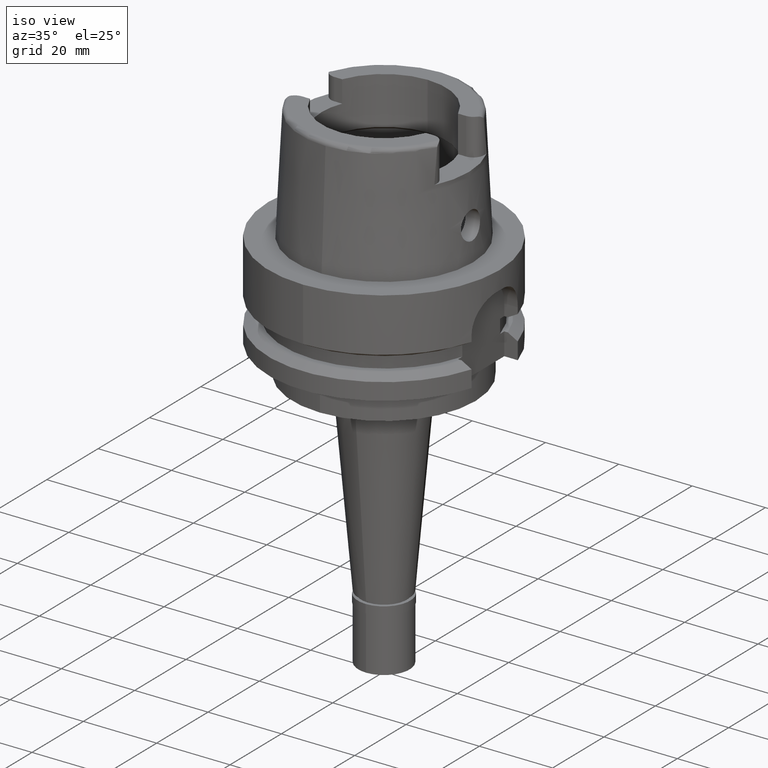
[diagram: clean part render]
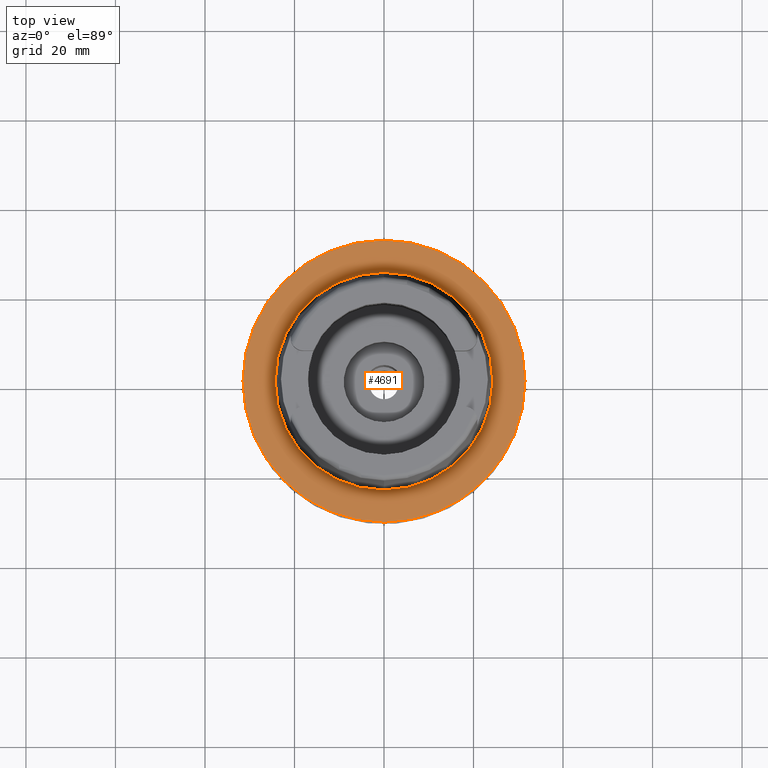
[diagram: tour spotlight — one face highlighted and labeled with its STEP entity id]
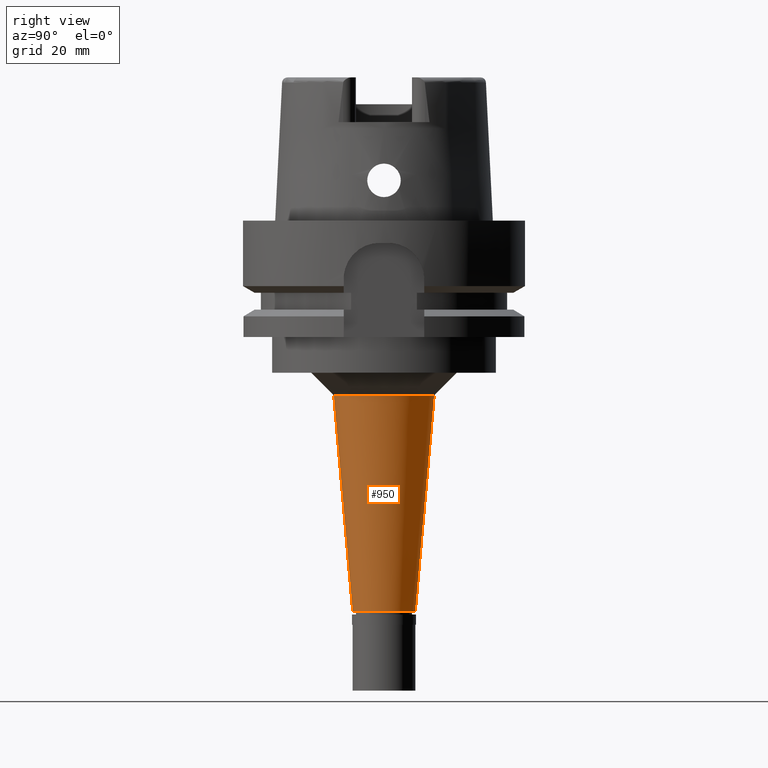
[diagram: tour spotlight — one face highlighted and labeled with its STEP entity id]
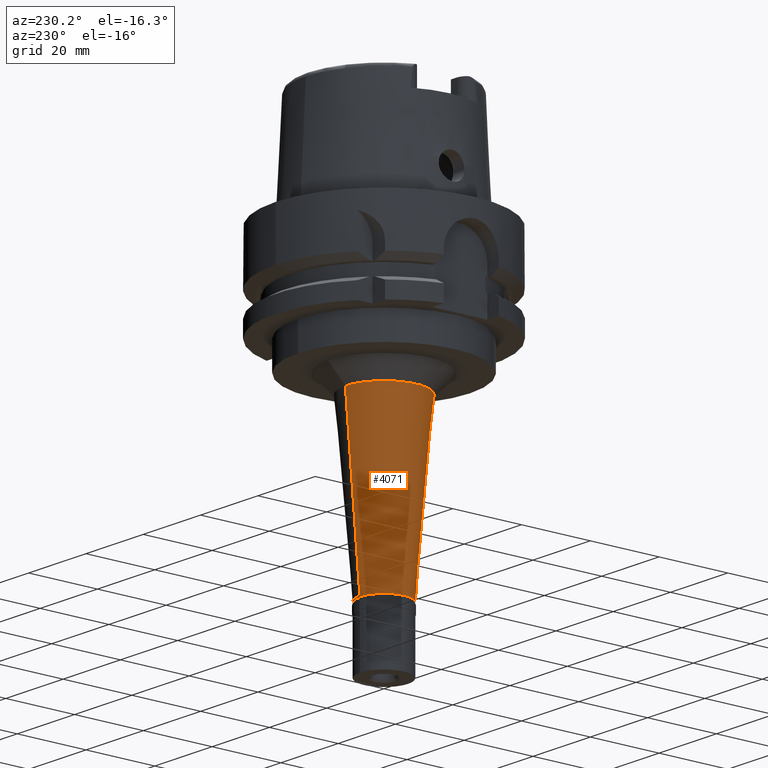
[diagram: tour spotlight — one face highlighted and labeled with its STEP entity id]
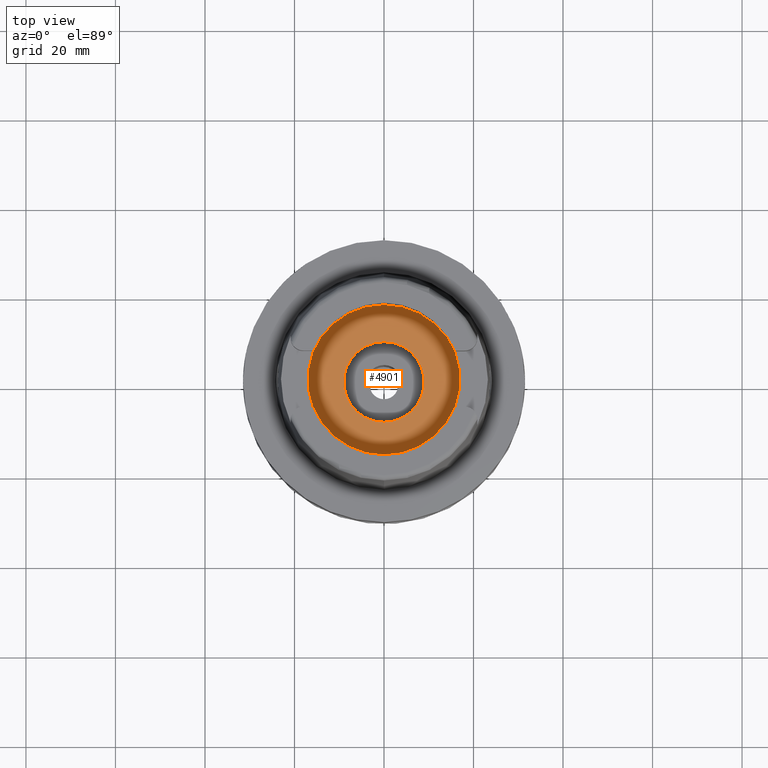
[diagram: tour spotlight — one face highlighted and labeled with its STEP entity id]
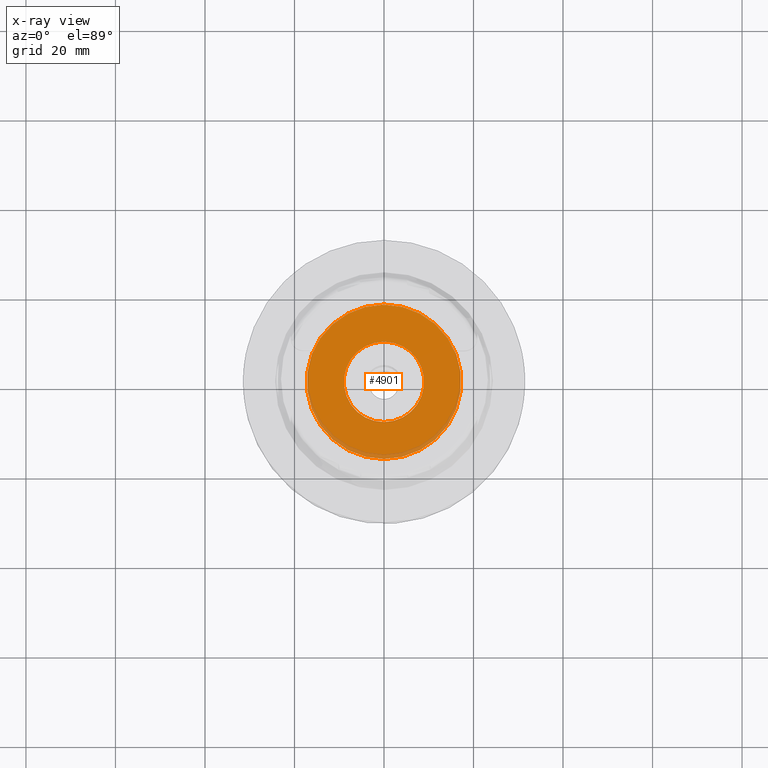
[diagram: x-ray of the same camera — body ghosted, this tour face saturated]
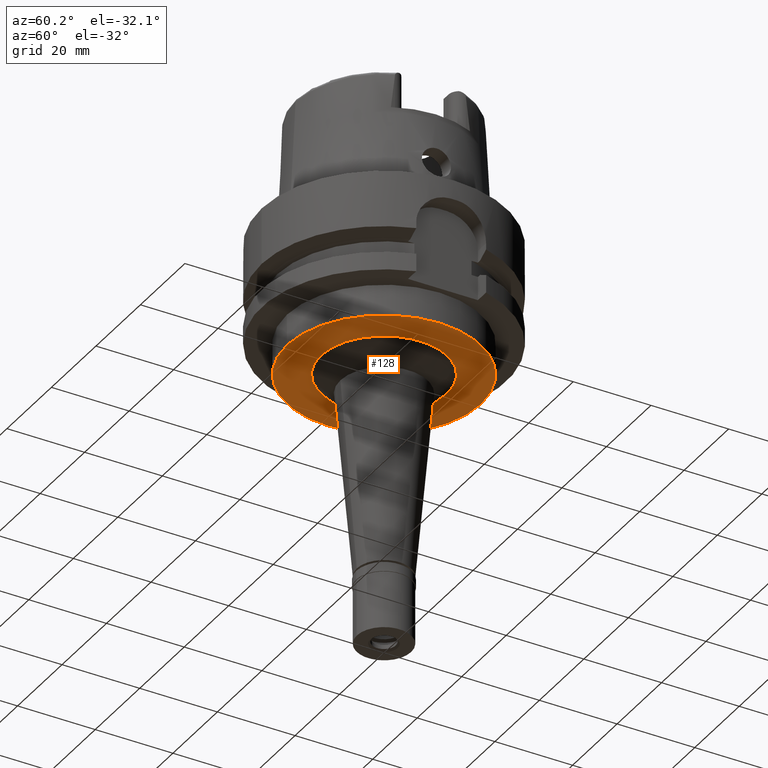
[diagram: tour spotlight — one face highlighted and labeled with its STEP entity id]
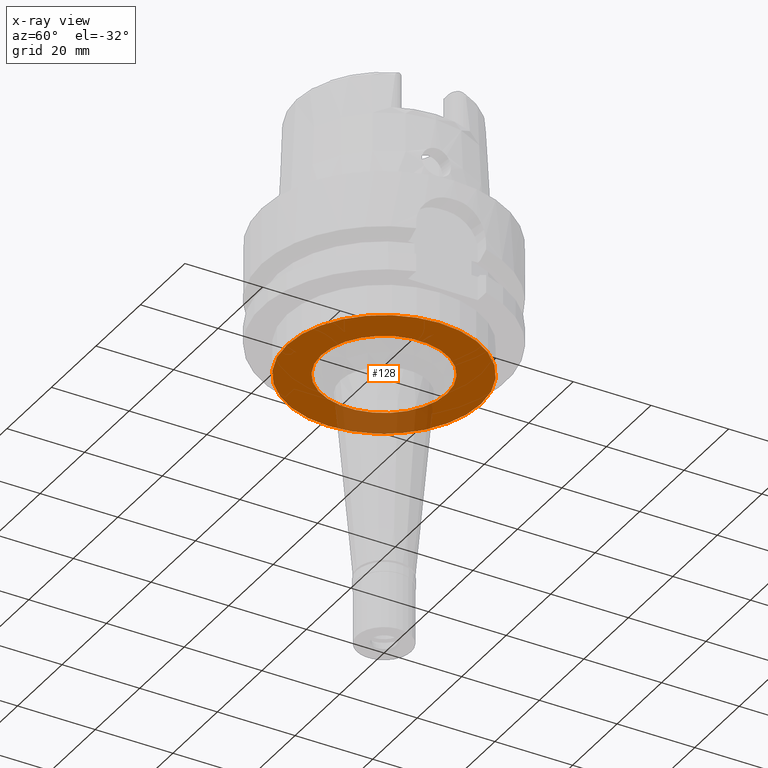
[diagram: x-ray of the same camera — body ghosted, this tour face saturated]
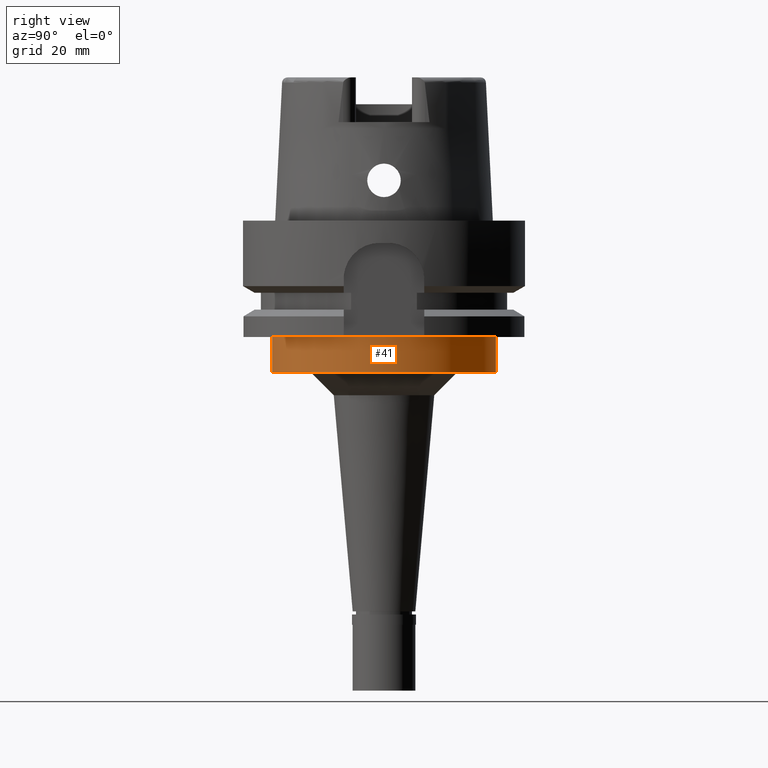
[diagram: tour spotlight — one face highlighted and labeled with its STEP entity id]
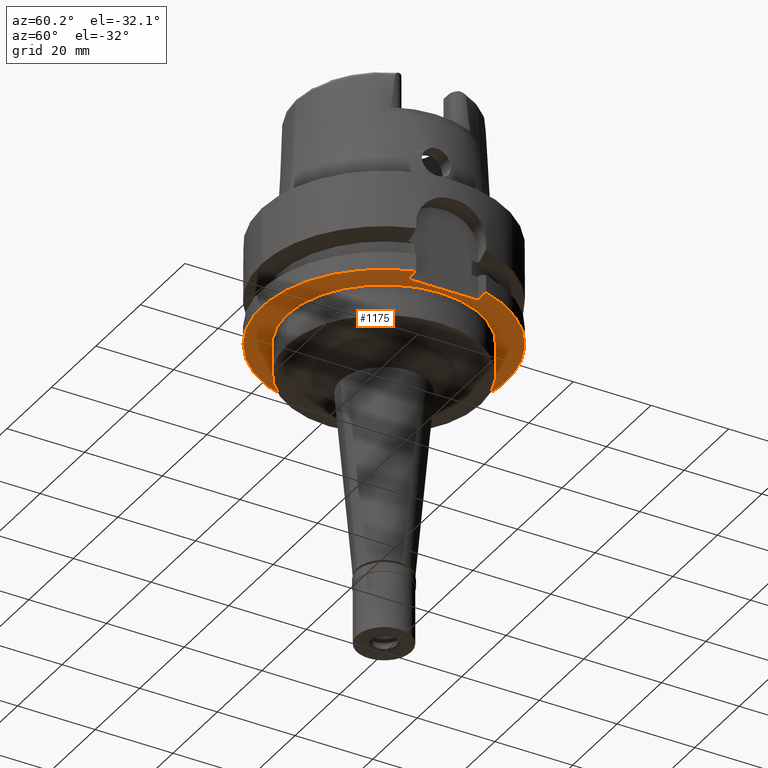
[diagram: tour spotlight — one face highlighted and labeled with its STEP entity id]
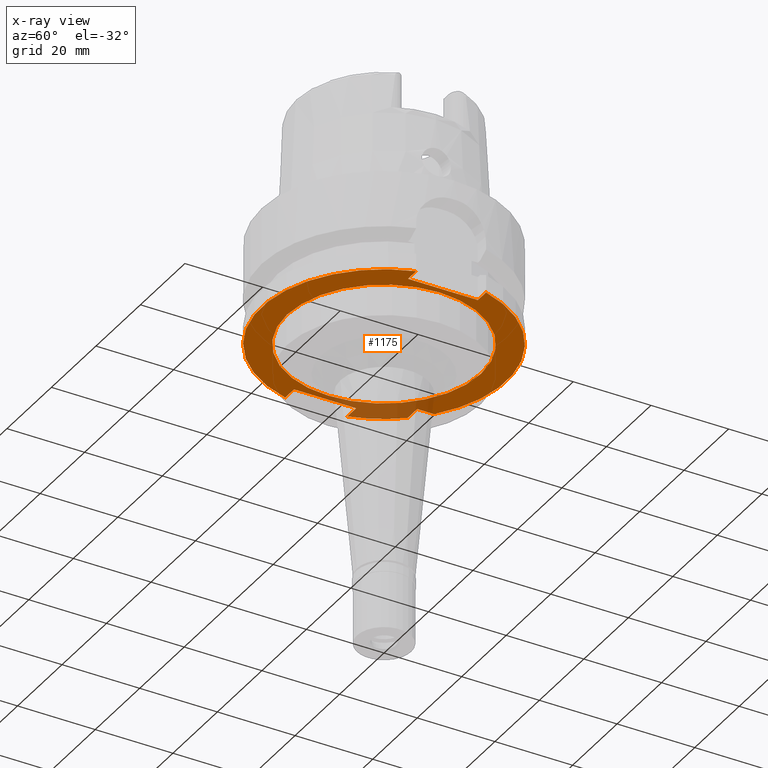
[diagram: x-ray of the same camera — body ghosted, this tour face saturated]
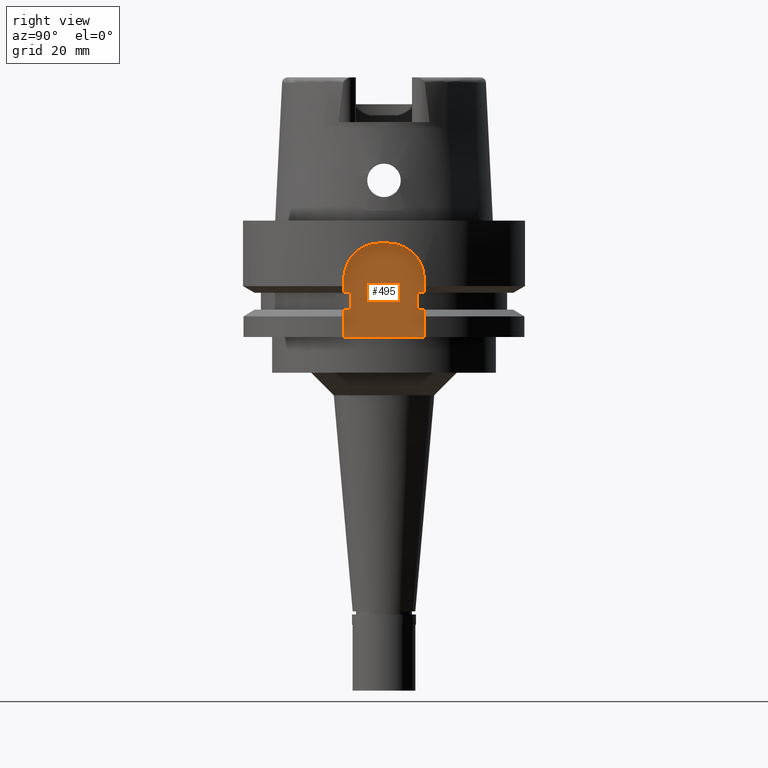
[diagram: tour spotlight — one face highlighted and labeled with its STEP entity id]
A machine part: a face-by-face anatomy tour. The part has 122 B-rep faces; the first image is the clean iso view, then the 8 largest visible faces are spotlighted one at a time (largest first), each with its STEP entity span.

Face 1 — top view, entity #4691. In plain terms, the highlighted planar face has unit normal (0, 0, -1).
Definition (entity closure, byte-faithful):
#439 = EDGE_LOOP ( 'NONE', ( #4310, #1503 ) ) ;
#465 = AXIS2_PLACEMENT_3D ( 'NONE', #4126, #2395, #5369 ) ;
#604 = CARTESIAN_POINT ( 'NONE',  ( 0.0000000000000000000, -31.50000000000000000, -8.526512829120999020E-14 ) ) ;
#654 = CARTESIAN_POINT ( 'NONE',  ( 0.0000000000000000000, 0.0000000000000000000, -8.526512829120999020E-14 ) ) ;
#697 = CIRCLE ( 'NONE', #5084, 31.50000000000000000 ) ;
#872 = DIRECTION ( 'NONE',  ( 0.0000000000000000000, 0.0000000000000000000, -1.000000000000000000 ) ) ;
#1077 = CIRCLE ( 'NONE', #1528, 24.31503482328999866 ) ;
#1202 = CARTESIAN_POINT ( 'NONE',  ( 0.0000000000000000000, 0.0000000000000000000, 0.0000000000000000000 ) ) ;
#1293 = CARTESIAN_POINT ( 'NONE',  ( 0.0000000000000000000, 0.0000000000000000000, 1.136868377215999875E-13 ) ) ;
#1349 = DIRECTION ( 'NONE',  ( 0.0000000000000000000, 1.000000000000000000, 0.0000000000000000000 ) ) ;
#1503 = ORIENTED_EDGE ( 'NONE', *, *, #4057, .F. ) ;
#1528 = AXIS2_PLACEMENT_3D ( 'NONE', #1293, #5425, #3366 ) ;
#1880 = EDGE_CURVE ( 'NONE', #5281, #4258, #697, .T. ) ;
#1955 = DIRECTION ( 'NONE',  ( 0.0000000000000000000, -1.000000000000000000, 0.0000000000000000000 ) ) ;
#2395 = DIRECTION ( 'NONE',  ( 0.0000000000000000000, 0.0000000000000000000, 1.000000000000000000 ) ) ;
#2439 = EDGE_CURVE ( 'NONE', #4258, #5281, #3066, .T. ) ;
#3066 = CIRCLE ( 'NONE', #4907, 31.50000000000000000 ) ;
#3071 = CARTESIAN_POINT ( 'NONE',  ( 0.0000000000000000000, 0.0000000000000000000, -8.526512829120999020E-14 ) ) ;
#3073 = VERTEX_POINT ( 'NONE', #4379 ) ;
#3363 = FACE_OUTER_BOUND ( 'NONE', #4474, .T. ) ;
#3366 = DIRECTION ( 'NONE',  ( 0.0000000000000000000, -1.000000000000000000, 0.0000000000000000000 ) ) ;
#3660 = ORIENTED_EDGE ( 'NONE', *, *, #2439, .F. ) ;
#3728 = CIRCLE ( 'NONE', #465, 24.31503482328999866 ) ;
#3802 = DIRECTION ( 'NONE',  ( 0.0000000000000000000, -1.000000000000000000, 0.0000000000000000000 ) ) ;
#3858 = PLANE ( 'NONE',  #4164 ) ;
#4057 = EDGE_CURVE ( 'NONE', #5289, #3073, #1077, .T. ) ;
#4126 = CARTESIAN_POINT ( 'NONE',  ( 0.0000000000000000000, 0.0000000000000000000, 1.136868377215999875E-13 ) ) ;
#4164 = AXIS2_PLACEMENT_3D ( 'NONE', #1202, #872, #3802 ) ;
#4258 = VERTEX_POINT ( 'NONE', #604 ) ;
#4310 = ORIENTED_EDGE ( 'NONE', *, *, #4453, .F. ) ;
#4379 = CARTESIAN_POINT ( 'NONE',  ( 0.0000000000000000000, 24.31503482328999866, 1.136868377215999875E-13 ) ) ;
#4453 = EDGE_CURVE ( 'NONE', #3073, #5289, #3728, .T. ) ;
#4474 = EDGE_LOOP ( 'NONE', ( #4978, #3660 ) ) ;
#4613 = CARTESIAN_POINT ( 'NONE',  ( 0.0000000000000000000, -24.31503482328999866, 1.882938249763999678E-13 ) ) ;
#4691 = ADVANCED_FACE ( 'NONE', ( #3363, #5029 ), #3858, .F. ) ;
#4738 = DIRECTION ( 'NONE',  ( 0.0000000000000000000, 0.0000000000000000000, -1.000000000000000000 ) ) ;
#4898 = DIRECTION ( 'NONE',  ( 0.0000000000000000000, 0.0000000000000000000, -1.000000000000000000 ) ) ;
#4907 = AXIS2_PLACEMENT_3D ( 'NONE', #654, #4898, #1955 ) ;
#4978 = ORIENTED_EDGE ( 'NONE', *, *, #1880, .F. ) ;
#5024 = CARTESIAN_POINT ( 'NONE',  ( 0.0000000000000000000, 31.50000000000000000, -8.526512829120999020E-14 ) ) ;
#5029 = FACE_BOUND ( 'NONE', #439, .T. ) ;
#5084 = AXIS2_PLACEMENT_3D ( 'NONE', #3071, #4738, #1349 ) ;
#5281 = VERTEX_POINT ( 'NONE', #5024 ) ;
#5289 = VERTEX_POINT ( 'NONE', #4613 ) ;
#5369 = DIRECTION ( 'NONE',  ( 0.0000000000000000000, 1.000000000000000000, 0.0000000000000000000 ) ) ;
#5425 = DIRECTION ( 'NONE',  ( 0.0000000000000000000, 0.0000000000000000000, 1.000000000000000000 ) ) ;

Face 2 — right view, entity #950. In plain terms, the highlighted conical surface has half-angle 5 deg.
Definition (entity closure, byte-faithful):
#319 = LINE ( 'NONE', #3991, #979 ) ;
#387 = EDGE_CURVE ( 'NONE', #5278, #3163, #3428, .T. ) ;
#629 = VERTEX_POINT ( 'NONE', #5380 ) ;
#679 = AXIS2_PLACEMENT_3D ( 'NONE', #692, #1958, #2374 ) ;
#692 = CARTESIAN_POINT ( 'NONE',  ( 0.0000000000000000000, 0.0000000000000000000, -39.00000000000000000 ) ) ;
#761 = DIRECTION ( 'NONE',  ( 0.0000000000000000000, -0.08715574274764407992, -0.9961946980917467664 ) ) ;
#811 = CARTESIAN_POINT ( 'NONE',  ( 0.0000000000000000000, -7.000000000000000000, -87.29999999999999716 ) ) ;
#950 = ADVANCED_FACE ( 'NONE', ( #5304 ), #2356, .T. ) ;
#979 = VECTOR ( 'NONE', #3770, 1000.000000000000114 ) ;
#1475 = VECTOR ( 'NONE', #761, 1000.000000000000114 ) ;
#1500 = EDGE_CURVE ( 'NONE', #629, #3163, #2936, .T. ) ;
#1605 = CARTESIAN_POINT ( 'NONE',  ( 0.0000000000000000000, 0.0000000000000000000, -63.14999999999999858 ) ) ;
#1958 = DIRECTION ( 'NONE',  ( 0.0000000000000000000, 0.0000000000000000000, 1.000000000000000000 ) ) ;
#2020 = AXIS2_PLACEMENT_3D ( 'NONE', #4454, #3574, #5253 ) ;
#2049 = DIRECTION ( 'NONE',  ( 0.0000000000000000000, 1.000000000000000000, 0.0000000000000000000 ) ) ;
#2356 = CONICAL_SURFACE ( 'NONE', #5422, 9.112851224151000906, 0.08726646259969973729 ) ;
#2374 = DIRECTION ( 'NONE',  ( 0.0000000000000000000, -1.000000000000000000, 0.0000000000000000000 ) ) ;
#2500 = EDGE_LOOP ( 'NONE', ( #3469, #3844, #3088, #2604 ) ) ;
#2604 = ORIENTED_EDGE ( 'NONE', *, *, #1500, .F. ) ;
#2936 = LINE ( 'NONE', #4611, #1475 ) ;
#3088 = ORIENTED_EDGE ( 'NONE', *, *, #387, .T. ) ;
#3163 = VERTEX_POINT ( 'NONE', #3558 ) ;
#3342 = EDGE_CURVE ( 'NONE', #4416, #629, #5421, .T. ) ;
#3428 = CIRCLE ( 'NONE', #2020, 7.000000000000000000 ) ;
#3469 = ORIENTED_EDGE ( 'NONE', *, *, #3342, .F. ) ;
#3558 = CARTESIAN_POINT ( 'NONE',  ( 0.0000000000000000000, 7.000000000000000000, -87.29999999999999716 ) ) ;
#3574 = DIRECTION ( 'NONE',  ( 0.0000000000000000000, 0.0000000000000000000, 1.000000000000000000 ) ) ;
#3656 = EDGE_CURVE ( 'NONE', #4416, #5278, #319, .T. ) ;
#3696 = CARTESIAN_POINT ( 'NONE',  ( 0.0000000000000000000, -11.22570244829999986, -39.00000000000000000 ) ) ;
#3770 = DIRECTION ( 'NONE',  ( 0.0000000000000000000, 0.08715574274764407992, -0.9961946980917467664 ) ) ;
#3844 = ORIENTED_EDGE ( 'NONE', *, *, #3656, .T. ) ;
#3991 = CARTESIAN_POINT ( 'NONE',  ( 0.0000000000000000000, -11.22570244829999986, -39.00000000000000000 ) ) ;
#4416 = VERTEX_POINT ( 'NONE', #3696 ) ;
#4454 = CARTESIAN_POINT ( 'NONE',  ( 0.0000000000000000000, 0.0000000000000000000, -87.29999999999999716 ) ) ;
#4500 = DIRECTION ( 'NONE',  ( 0.0000000000000000000, 0.0000000000000000000, 1.000000000000000000 ) ) ;
#4611 = CARTESIAN_POINT ( 'NONE',  ( 0.0000000000000000000, 11.22570244829999986, -39.00000000000000000 ) ) ;
#5253 = DIRECTION ( 'NONE',  ( 0.0000000000000000000, -1.000000000000000000, 0.0000000000000000000 ) ) ;
#5278 = VERTEX_POINT ( 'NONE', #811 ) ;
#5304 = FACE_OUTER_BOUND ( 'NONE', #2500, .T. ) ;
#5380 = CARTESIAN_POINT ( 'NONE',  ( 0.0000000000000000000, 11.22570244829999986, -39.00000000000000000 ) ) ;
#5421 = CIRCLE ( 'NONE', #679, 11.22570244829999986 ) ;
#5422 = AXIS2_PLACEMENT_3D ( 'NONE', #1605, #4500, #2049 ) ;

Face 3 — auxiliary view, entity #4071. In plain terms, the highlighted conical surface has half-angle 5 deg.
Definition (entity closure, byte-faithful):
#319 = LINE ( 'NONE', #3991, #979 ) ;
#497 = DIRECTION ( 'NONE',  ( 0.0000000000000000000, 1.000000000000000000, 0.0000000000000000000 ) ) ;
#629 = VERTEX_POINT ( 'NONE', #5380 ) ;
#761 = DIRECTION ( 'NONE',  ( 0.0000000000000000000, -0.08715574274764407992, -0.9961946980917467664 ) ) ;
#770 = DIRECTION ( 'NONE',  ( 0.0000000000000000000, 0.0000000000000000000, -1.000000000000000000 ) ) ;
#811 = CARTESIAN_POINT ( 'NONE',  ( 0.0000000000000000000, -7.000000000000000000, -87.29999999999999716 ) ) ;
#979 = VECTOR ( 'NONE', #3770, 1000.000000000000114 ) ;
#1232 = CARTESIAN_POINT ( 'NONE',  ( 0.0000000000000000000, 0.0000000000000000000, -63.14999999999999858 ) ) ;
#1475 = VECTOR ( 'NONE', #761, 1000.000000000000114 ) ;
#1490 = DIRECTION ( 'NONE',  ( 0.0000000000000000000, -1.000000000000000000, 0.0000000000000000000 ) ) ;
#1500 = EDGE_CURVE ( 'NONE', #629, #3163, #2936, .T. ) ;
#1873 = ORIENTED_EDGE ( 'NONE', *, *, #3787, .T. ) ;
#2110 = DIRECTION ( 'NONE',  ( 0.0000000000000000000, 0.0000000000000000000, 1.000000000000000000 ) ) ;
#2178 = DIRECTION ( 'NONE',  ( 0.0000000000000000000, 0.0000000000000000000, 1.000000000000000000 ) ) ;
#2303 = ORIENTED_EDGE ( 'NONE', *, *, #3656, .F. ) ;
#2437 = CARTESIAN_POINT ( 'NONE',  ( 0.0000000000000000000, 0.0000000000000000000, -87.29999999999999716 ) ) ;
#2936 = LINE ( 'NONE', #4611, #1475 ) ;
#3163 = VERTEX_POINT ( 'NONE', #3558 ) ;
#3282 = CIRCLE ( 'NONE', #3634, 7.000000000000000000 ) ;
#3413 = EDGE_CURVE ( 'NONE', #4416, #629, #4596, .T. ) ;
#3558 = CARTESIAN_POINT ( 'NONE',  ( 0.0000000000000000000, 7.000000000000000000, -87.29999999999999716 ) ) ;
#3634 = AXIS2_PLACEMENT_3D ( 'NONE', #2437, #2110, #3822 ) ;
#3656 = EDGE_CURVE ( 'NONE', #4416, #5278, #319, .T. ) ;
#3671 = EDGE_LOOP ( 'NONE', ( #1873, #2303, #4746, #3985 ) ) ;
#3696 = CARTESIAN_POINT ( 'NONE',  ( 0.0000000000000000000, -11.22570244829999986, -39.00000000000000000 ) ) ;
#3724 = AXIS2_PLACEMENT_3D ( 'NONE', #5291, #770, #1490 ) ;
#3770 = DIRECTION ( 'NONE',  ( 0.0000000000000000000, 0.08715574274764407992, -0.9961946980917467664 ) ) ;
#3784 = FACE_OUTER_BOUND ( 'NONE', #3671, .T. ) ;
#3787 = EDGE_CURVE ( 'NONE', #3163, #5278, #3282, .T. ) ;
#3822 = DIRECTION ( 'NONE',  ( 0.0000000000000000000, 1.000000000000000000, 0.0000000000000000000 ) ) ;
#3985 = ORIENTED_EDGE ( 'NONE', *, *, #1500, .T. ) ;
#3991 = CARTESIAN_POINT ( 'NONE',  ( 0.0000000000000000000, -11.22570244829999986, -39.00000000000000000 ) ) ;
#3995 = AXIS2_PLACEMENT_3D ( 'NONE', #1232, #2178, #497 ) ;
#4071 = ADVANCED_FACE ( 'NONE', ( #3784 ), #4333, .T. ) ;
#4333 = CONICAL_SURFACE ( 'NONE', #3995, 9.112851224151000906, 0.08726646259969973729 ) ;
#4416 = VERTEX_POINT ( 'NONE', #3696 ) ;
#4596 = CIRCLE ( 'NONE', #3724, 11.22570244829999986 ) ;
#4611 = CARTESIAN_POINT ( 'NONE',  ( 0.0000000000000000000, 11.22570244829999986, -39.00000000000000000 ) ) ;
#4746 = ORIENTED_EDGE ( 'NONE', *, *, #3413, .T. ) ;
#5278 = VERTEX_POINT ( 'NONE', #811 ) ;
#5291 = CARTESIAN_POINT ( 'NONE',  ( 0.0000000000000000000, 0.0000000000000000000, -39.00000000000000000 ) ) ;
#5380 = CARTESIAN_POINT ( 'NONE',  ( 0.0000000000000000000, 11.22570244829999986, -39.00000000000000000 ) ) ;

Face 4 — top view, entity #4901. An x-ray twin of the same camera follows (body ghosted, this face saturated) — the face is partly hidden behind the body. In plain terms, the highlighted planar face has unit normal (0, 0, -1).
Definition (entity closure, byte-faithful):
#357 = CARTESIAN_POINT ( 'NONE',  ( 0.0000000000000000000, 0.0000000000000000000, -9.950000000000001066 ) ) ;
#557 = CARTESIAN_POINT ( 'NONE',  ( 0.0000000000000000000, 9.000000000000000000, -9.950000000000001066 ) ) ;
#680 = CIRCLE ( 'NONE', #1998, 17.25000000000000000 ) ;
#849 = VERTEX_POINT ( 'NONE', #557 ) ;
#855 = EDGE_CURVE ( 'NONE', #4990, #2558, #4541, .T. ) ;
#887 = EDGE_CURVE ( 'NONE', #5264, #849, #4982, .T. ) ;
#1001 = DIRECTION ( 'NONE',  ( 0.0000000000000000000, 1.000000000000000000, 0.0000000000000000000 ) ) ;
#1021 = DIRECTION ( 'NONE',  ( 0.0000000000000000000, 0.0000000000000000000, -1.000000000000000000 ) ) ;
#1167 = CARTESIAN_POINT ( 'NONE',  ( 0.0000000000000000000, 17.25000000000000000, -9.950000000000001066 ) ) ;
#1322 = FACE_OUTER_BOUND ( 'NONE', #3110, .T. ) ;
#1405 = EDGE_CURVE ( 'NONE', #2558, #4990, #680, .T. ) ;
#1441 = AXIS2_PLACEMENT_3D ( 'NONE', #3503, #4676, #2672 ) ;
#1442 = EDGE_LOOP ( 'NONE', ( #2755, #2183 ) ) ;
#1583 = DIRECTION ( 'NONE',  ( 0.0000000000000000000, 0.0000000000000000000, 1.000000000000000000 ) ) ;
#1996 = AXIS2_PLACEMENT_3D ( 'NONE', #2429, #1583, #4476 ) ;
#1998 = AXIS2_PLACEMENT_3D ( 'NONE', #5310, #2312, #1001 ) ;
#2183 = ORIENTED_EDGE ( 'NONE', *, *, #887, .F. ) ;
#2259 = AXIS2_PLACEMENT_3D ( 'NONE', #357, #2945, #3695 ) ;
#2312 = DIRECTION ( 'NONE',  ( 0.0000000000000000000, 0.0000000000000000000, -1.000000000000000000 ) ) ;
#2331 = ORIENTED_EDGE ( 'NONE', *, *, #1405, .F. ) ;
#2429 = CARTESIAN_POINT ( 'NONE',  ( 0.0000000000000000000, 0.0000000000000000000, -9.950000000000001066 ) ) ;
#2519 = CIRCLE ( 'NONE', #2259, 9.000000000000000000 ) ;
#2558 = VERTEX_POINT ( 'NONE', #1167 ) ;
#2653 = ORIENTED_EDGE ( 'NONE', *, *, #855, .F. ) ;
#2672 = DIRECTION ( 'NONE',  ( 0.0000000000000000000, -1.000000000000000000, 0.0000000000000000000 ) ) ;
#2720 = DIRECTION ( 'NONE',  ( 0.0000000000000000000, -1.000000000000000000, 0.0000000000000000000 ) ) ;
#2755 = ORIENTED_EDGE ( 'NONE', *, *, #2859, .F. ) ;
#2859 = EDGE_CURVE ( 'NONE', #849, #5264, #2519, .T. ) ;
#2945 = DIRECTION ( 'NONE',  ( 0.0000000000000000000, 0.0000000000000000000, 1.000000000000000000 ) ) ;
#3004 = FACE_BOUND ( 'NONE', #1442, .T. ) ;
#3110 = EDGE_LOOP ( 'NONE', ( #2331, #2653 ) ) ;
#3503 = CARTESIAN_POINT ( 'NONE',  ( 0.0000000000000000000, 0.0000000000000000000, -9.950000000000001066 ) ) ;
#3585 = AXIS2_PLACEMENT_3D ( 'NONE', #4857, #1021, #2720 ) ;
#3695 = DIRECTION ( 'NONE',  ( 0.0000000000000000000, 1.000000000000000000, 0.0000000000000000000 ) ) ;
#3887 = PLANE ( 'NONE',  #1441 ) ;
#4476 = DIRECTION ( 'NONE',  ( 0.0000000000000000000, -1.000000000000000000, 0.0000000000000000000 ) ) ;
#4541 = CIRCLE ( 'NONE', #3585, 17.25000000000000000 ) ;
#4652 = CARTESIAN_POINT ( 'NONE',  ( 0.0000000000000000000, -17.25000000000000000, -9.950000000000001066 ) ) ;
#4676 = DIRECTION ( 'NONE',  ( 0.0000000000000000000, 0.0000000000000000000, -1.000000000000000000 ) ) ;
#4857 = CARTESIAN_POINT ( 'NONE',  ( 0.0000000000000000000, 0.0000000000000000000, -9.950000000000001066 ) ) ;
#4901 = ADVANCED_FACE ( 'NONE', ( #1322, #3004 ), #3887, .F. ) ;
#4982 = CIRCLE ( 'NONE', #1996, 9.000000000000000000 ) ;
#4990 = VERTEX_POINT ( 'NONE', #4652 ) ;
#5264 = VERTEX_POINT ( 'NONE', #5414 ) ;
#5310 = CARTESIAN_POINT ( 'NONE',  ( 0.0000000000000000000, 0.0000000000000000000, -9.950000000000001066 ) ) ;
#5414 = CARTESIAN_POINT ( 'NONE',  ( 0.0000000000000000000, -9.000000000000000000, -9.950000000000001066 ) ) ;

Face 5 — auxiliary view, entity #128. An x-ray twin of the same camera follows (body ghosted, this face saturated) — the face is partly hidden behind the body. In plain terms, the highlighted planar face has unit normal (0, 0, -1).
Definition (entity closure, byte-faithful):
#30 = CARTESIAN_POINT ( 'NONE',  ( 0.0000000000000000000, 0.0000000000000000000, -34.00000000000000000 ) ) ;
#49 = VERTEX_POINT ( 'NONE', #1600 ) ;
#122 = AXIS2_PLACEMENT_3D ( 'NONE', #30, #4212, #822 ) ;
#128 = ADVANCED_FACE ( 'NONE', ( #721, #335 ), #5347, .T. ) ;
#335 = FACE_BOUND ( 'NONE', #2285, .T. ) ;
#413 = AXIS2_PLACEMENT_3D ( 'NONE', #4296, #1875, #5122 ) ;
#420 = EDGE_LOOP ( 'NONE', ( #3948, #1424 ) ) ;
#701 = AXIS2_PLACEMENT_3D ( 'NONE', #5322, #3235, #3260 ) ;
#721 = FACE_OUTER_BOUND ( 'NONE', #420, .T. ) ;
#822 = DIRECTION ( 'NONE',  ( 0.0000000000000000000, 1.000000000000000000, 0.0000000000000000000 ) ) ;
#938 = VERTEX_POINT ( 'NONE', #3623 ) ;
#1424 = ORIENTED_EDGE ( 'NONE', *, *, #4983, .F. ) ;
#1600 = CARTESIAN_POINT ( 'NONE',  ( 0.0000000000000000000, -16.22570244829999808, -34.00000000000000000 ) ) ;
#1770 = VERTEX_POINT ( 'NONE', #4131 ) ;
#1875 = DIRECTION ( 'NONE',  ( 0.0000000000000000000, 0.0000000000000000000, 1.000000000000000000 ) ) ;
#1879 = CIRCLE ( 'NONE', #122, 16.22570244829999808 ) ;
#1969 = CIRCLE ( 'NONE', #2673, 25.00000000000000000 ) ;
#2258 = DIRECTION ( 'NONE',  ( 0.0000000000000000000, -1.000000000000000000, 0.0000000000000000000 ) ) ;
#2285 = EDGE_LOOP ( 'NONE', ( #2835, #2958 ) ) ;
#2671 = CIRCLE ( 'NONE', #5219, 16.22570244829999808 ) ;
#2673 = AXIS2_PLACEMENT_3D ( 'NONE', #3912, #3419, #2258 ) ;
#2835 = ORIENTED_EDGE ( 'NONE', *, *, #4196, .F. ) ;
#2958 = ORIENTED_EDGE ( 'NONE', *, *, #4382, .F. ) ;
#3118 = EDGE_CURVE ( 'NONE', #1770, #5069, #3405, .T. ) ;
#3123 = DIRECTION ( 'NONE',  ( 0.0000000000000000000, 0.0000000000000000000, -1.000000000000000000 ) ) ;
#3235 = DIRECTION ( 'NONE',  ( 0.0000000000000000000, 0.0000000000000000000, -1.000000000000000000 ) ) ;
#3260 = DIRECTION ( 'NONE',  ( 0.0000000000000000000, -1.000000000000000000, 0.0000000000000000000 ) ) ;
#3405 = CIRCLE ( 'NONE', #413, 25.00000000000000000 ) ;
#3419 = DIRECTION ( 'NONE',  ( 0.0000000000000000000, 0.0000000000000000000, 1.000000000000000000 ) ) ;
#3623 = CARTESIAN_POINT ( 'NONE',  ( 0.0000000000000000000, 16.22570244829999808, -34.00000000000000000 ) ) ;
#3912 = CARTESIAN_POINT ( 'NONE',  ( 0.0000000000000000000, 0.0000000000000000000, -34.00000000000000000 ) ) ;
#3948 = ORIENTED_EDGE ( 'NONE', *, *, #3118, .F. ) ;
#4131 = CARTESIAN_POINT ( 'NONE',  ( 0.0000000000000000000, 25.00000000000000000, -34.00000000000000000 ) ) ;
#4196 = EDGE_CURVE ( 'NONE', #938, #49, #1879, .T. ) ;
#4212 = DIRECTION ( 'NONE',  ( 0.0000000000000000000, 0.0000000000000000000, -1.000000000000000000 ) ) ;
#4296 = CARTESIAN_POINT ( 'NONE',  ( 0.0000000000000000000, 0.0000000000000000000, -34.00000000000000000 ) ) ;
#4382 = EDGE_CURVE ( 'NONE', #49, #938, #2671, .T. ) ;
#4793 = DIRECTION ( 'NONE',  ( 0.0000000000000000000, -1.000000000000000000, 0.0000000000000000000 ) ) ;
#4869 = CARTESIAN_POINT ( 'NONE',  ( 0.0000000000000000000, -25.00000000000000000, -34.00000000000000000 ) ) ;
#4983 = EDGE_CURVE ( 'NONE', #5069, #1770, #1969, .T. ) ;
#5069 = VERTEX_POINT ( 'NONE', #4869 ) ;
#5122 = DIRECTION ( 'NONE',  ( 0.0000000000000000000, 1.000000000000000000, 0.0000000000000000000 ) ) ;
#5207 = CARTESIAN_POINT ( 'NONE',  ( 0.0000000000000000000, 0.0000000000000000000, -34.00000000000000000 ) ) ;
#5219 = AXIS2_PLACEMENT_3D ( 'NONE', #5207, #3123, #4793 ) ;
#5322 = CARTESIAN_POINT ( 'NONE',  ( 0.0000000000000000000, 0.0000000000000000000, -34.00000000000000000 ) ) ;
#5347 = PLANE ( 'NONE',  #701 ) ;

Face 6 — right view, entity #41. In plain terms, the highlighted cylindrical surface (partial cylindrical patch) has radius 25 mm, axis along (0, 0, -1).
Definition (entity closure, byte-faithful):
#41 = ADVANCED_FACE ( 'NONE', ( #2378 ), #1548, .T. ) ;
#61 = AXIS2_PLACEMENT_3D ( 'NONE', #435, #4927, #2009 ) ;
#261 = DIRECTION ( 'NONE',  ( 0.0000000000000000000, 0.0000000000000000000, -1.000000000000000000 ) ) ;
#435 = CARTESIAN_POINT ( 'NONE',  ( 0.0000000000000000000, 0.0000000000000000000, -26.00000000000000000 ) ) ;
#597 = DIRECTION ( 'NONE',  ( 0.0000000000000000000, 0.0000000000000000000, -1.000000000000000000 ) ) ;
#608 = EDGE_LOOP ( 'NONE', ( #993, #2713, #3120, #3790 ) ) ;
#949 = VECTOR ( 'NONE', #1786, 1000.000000000000000 ) ;
#993 = ORIENTED_EDGE ( 'NONE', *, *, #2902, .T. ) ;
#1456 = LINE ( 'NONE', #5174, #2938 ) ;
#1548 = CYLINDRICAL_SURFACE ( 'NONE', #3169, 25.00000000000000000 ) ;
#1770 = VERTEX_POINT ( 'NONE', #4131 ) ;
#1786 = DIRECTION ( 'NONE',  ( 0.0000000000000000000, 0.0000000000000000000, -1.000000000000000000 ) ) ;
#1969 = CIRCLE ( 'NONE', #2673, 25.00000000000000000 ) ;
#2009 = DIRECTION ( 'NONE',  ( 0.0000000000000000000, 1.000000000000000000, 0.0000000000000000000 ) ) ;
#2203 = EDGE_CURVE ( 'NONE', #4498, #1770, #2670, .T. ) ;
#2258 = DIRECTION ( 'NONE',  ( 0.0000000000000000000, -1.000000000000000000, 0.0000000000000000000 ) ) ;
#2378 = FACE_OUTER_BOUND ( 'NONE', #608, .T. ) ;
#2670 = LINE ( 'NONE', #3442, #949 ) ;
#2673 = AXIS2_PLACEMENT_3D ( 'NONE', #3912, #3419, #2258 ) ;
#2713 = ORIENTED_EDGE ( 'NONE', *, *, #4783, .T. ) ;
#2786 = DIRECTION ( 'NONE',  ( 0.0000000000000000000, -1.000000000000000000, 0.0000000000000000000 ) ) ;
#2902 = EDGE_CURVE ( 'NONE', #4498, #3611, #4811, .T. ) ;
#2938 = VECTOR ( 'NONE', #597, 1000.000000000000000 ) ;
#3120 = ORIENTED_EDGE ( 'NONE', *, *, #4983, .T. ) ;
#3169 = AXIS2_PLACEMENT_3D ( 'NONE', #4027, #261, #2786 ) ;
#3171 = CARTESIAN_POINT ( 'NONE',  ( 0.0000000000000000000, -25.00000000000000000, -26.00000000000000000 ) ) ;
#3419 = DIRECTION ( 'NONE',  ( 0.0000000000000000000, 0.0000000000000000000, 1.000000000000000000 ) ) ;
#3442 = CARTESIAN_POINT ( 'NONE',  ( 0.0000000000000000000, 25.00000000000000000, -26.00000000000000000 ) ) ;
#3611 = VERTEX_POINT ( 'NONE', #3171 ) ;
#3790 = ORIENTED_EDGE ( 'NONE', *, *, #2203, .F. ) ;
#3912 = CARTESIAN_POINT ( 'NONE',  ( 0.0000000000000000000, 0.0000000000000000000, -34.00000000000000000 ) ) ;
#4027 = CARTESIAN_POINT ( 'NONE',  ( 0.0000000000000000000, 0.0000000000000000000, 38.64999999999999858 ) ) ;
#4131 = CARTESIAN_POINT ( 'NONE',  ( 0.0000000000000000000, 25.00000000000000000, -34.00000000000000000 ) ) ;
#4498 = VERTEX_POINT ( 'NONE', #5393 ) ;
#4783 = EDGE_CURVE ( 'NONE', #3611, #5069, #1456, .T. ) ;
#4811 = CIRCLE ( 'NONE', #61, 25.00000000000000000 ) ;
#4869 = CARTESIAN_POINT ( 'NONE',  ( 0.0000000000000000000, -25.00000000000000000, -34.00000000000000000 ) ) ;
#4927 = DIRECTION ( 'NONE',  ( 0.0000000000000000000, 0.0000000000000000000, -1.000000000000000000 ) ) ;
#4983 = EDGE_CURVE ( 'NONE', #5069, #1770, #1969, .T. ) ;
#5069 = VERTEX_POINT ( 'NONE', #4869 ) ;
#5174 = CARTESIAN_POINT ( 'NONE',  ( 0.0000000000000000000, -25.00000000000000000, -26.00000000000000000 ) ) ;
#5393 = CARTESIAN_POINT ( 'NONE',  ( 0.0000000000000000000, 25.00000000000000000, -26.00000000000000000 ) ) ;

Face 7 — auxiliary view, entity #1175. An x-ray twin of the same camera follows (body ghosted, this face saturated) — the face is partly hidden behind the body. In plain terms, the highlighted planar face has unit normal (0, 0, -1).
Definition (entity closure, byte-faithful):
#54 = CARTESIAN_POINT ( 'NONE',  ( 30.18691769625000276, 9.000000000000000000, -26.00000000000000000 ) ) ;
#61 = AXIS2_PLACEMENT_3D ( 'NONE', #435, #4927, #2009 ) ;
#153 = ORIENTED_EDGE ( 'NONE', *, *, #1634, .F. ) ;
#156 = CIRCLE ( 'NONE', #764, 31.50000000000000711 ) ;
#171 = AXIS2_PLACEMENT_3D ( 'NONE', #2348, #694, #1546 ) ;
#254 = EDGE_CURVE ( 'NONE', #698, #473, #5062, .T. ) ;
#304 = DIRECTION ( 'NONE',  ( 0.0000000000000000000, 1.000000000000000000, 0.0000000000000000000 ) ) ;
#435 = CARTESIAN_POINT ( 'NONE',  ( 0.0000000000000000000, 0.0000000000000000000, -26.00000000000000000 ) ) ;
#458 = DIRECTION ( 'NONE',  ( -1.000000000000000000, 8.686570378870000015E-14, 0.0000000000000000000 ) ) ;
#473 = VERTEX_POINT ( 'NONE', #708 ) ;
#503 = CARTESIAN_POINT ( 'NONE',  ( 0.0000000000000000000, 0.0000000000000000000, -26.00000000000000000 ) ) ;
#601 = VECTOR ( 'NONE', #5446, 1000.000000000000000 ) ;
#603 = VERTEX_POINT ( 'NONE', #759 ) ;
#672 = AXIS2_PLACEMENT_3D ( 'NONE', #3090, #3418, #4344 ) ;
#694 = DIRECTION ( 'NONE',  ( 0.0000000000000000000, 0.0000000000000000000, 1.000000000000000000 ) ) ;
#698 = VERTEX_POINT ( 'NONE', #2132 ) ;
#708 = CARTESIAN_POINT ( 'NONE',  ( 26.50000000000000000, -9.000000000000000000, -26.00000000000000000 ) ) ;
#715 = ORIENTED_EDGE ( 'NONE', *, *, #2902, .F. ) ;
#759 = CARTESIAN_POINT ( 'NONE',  ( -30.46719547316000032, -8.000000000000000000, -26.00000000000000000 ) ) ;
#764 = AXIS2_PLACEMENT_3D ( 'NONE', #5248, #2330, #4392 ) ;
#796 = CARTESIAN_POINT ( 'NONE',  ( -26.50000000000000000, 8.000000000000000000, -26.00000000000000000 ) ) ;
#827 = EDGE_CURVE ( 'NONE', #2574, #2052, #156, .T. ) ;
#990 = EDGE_CURVE ( 'NONE', #3922, #1584, #4526, .T. ) ;
#1052 = CARTESIAN_POINT ( 'NONE',  ( -26.50000000000000000, 8.000000000000000000, -26.00000000000000000 ) ) ;
#1074 = ORIENTED_EDGE ( 'NONE', *, *, #3678, .T. ) ;
#1088 = CARTESIAN_POINT ( 'NONE',  ( -20.00000000000000000, 24.33618704727999926, -26.00000000000000000 ) ) ;
#1101 = VERTEX_POINT ( 'NONE', #1684 ) ;
#1175 = ADVANCED_FACE ( 'NONE', ( #5040, #4272 ), #3873, .T. ) ;
#1236 = DIRECTION ( 'NONE',  ( 0.0000000000000000000, 0.0000000000000000000, -1.000000000000000000 ) ) ;
#1304 = CIRCLE ( 'NONE', #171, 31.50000000000000000 ) ;
#1323 = CARTESIAN_POINT ( 'NONE',  ( 30.18691769625000276, -9.000000000000000000, -26.00000000000000000 ) ) ;
#1396 = EDGE_CURVE ( 'NONE', #3611, #4498, #3237, .T. ) ;
#1485 = CARTESIAN_POINT ( 'NONE',  ( -26.50000000000000000, -8.000000000000000000, -26.00000000000000000 ) ) ;
#1518 = LINE ( 'NONE', #1878, #2634 ) ;
#1546 = DIRECTION ( 'NONE',  ( 0.0000000000000000000, -1.000000000000000000, 0.0000000000000000000 ) ) ;
#1584 = VERTEX_POINT ( 'NONE', #1052 ) ;
#1634 = EDGE_CURVE ( 'NONE', #4966, #2574, #4749, .T. ) ;
#1670 = CARTESIAN_POINT ( 'NONE',  ( -24.33618704727619786, 19.99999999999964828, -26.00000000000000000 ) ) ;
#1684 = CARTESIAN_POINT ( 'NONE',  ( 26.50000000000000000, 9.000000000000000000, -26.00000000000000000 ) ) ;
#1720 = LINE ( 'NONE', #2882, #2923 ) ;
#1736 = VECTOR ( 'NONE', #5175, 1000.000000000000000 ) ;
#1815 = ORIENTED_EDGE ( 'NONE', *, *, #254, .F. ) ;
#1878 = CARTESIAN_POINT ( 'NONE',  ( 26.50000000000000000, -9.000000000000000000, -26.00000000000000000 ) ) ;
#2009 = DIRECTION ( 'NONE',  ( 0.0000000000000000000, 1.000000000000000000, 0.0000000000000000000 ) ) ;
#2052 = VERTEX_POINT ( 'NONE', #5236 ) ;
#2064 = EDGE_CURVE ( 'NONE', #603, #698, #1304, .T. ) ;
#2126 = DIRECTION ( 'NONE',  ( 0.0000000000000000000, -1.000000000000000000, 0.0000000000000000000 ) ) ;
#2127 = EDGE_CURVE ( 'NONE', #473, #1101, #1518, .T. ) ;
#2132 = CARTESIAN_POINT ( 'NONE',  ( 30.18691769625000276, -9.000000000000000000, -26.00000000000000000 ) ) ;
#2188 = EDGE_LOOP ( 'NONE', ( #715, #4889 ) ) ;
#2224 = VERTEX_POINT ( 'NONE', #54 ) ;
#2247 = EDGE_CURVE ( 'NONE', #2224, #5075, #4806, .T. ) ;
#2280 = ORIENTED_EDGE ( 'NONE', *, *, #990, .T. ) ;
#2284 = EDGE_CURVE ( 'NONE', #2224, #1101, #4703, .T. ) ;
#2330 = DIRECTION ( 'NONE',  ( 0.0000000000000000000, 0.0000000000000000000, 1.000000000000000000 ) ) ;
#2338 = DIRECTION ( 'NONE',  ( 0.0000000000000000000, 0.0000000000000000000, -1.000000000000000000 ) ) ;
#2348 = CARTESIAN_POINT ( 'NONE',  ( 0.0000000000000000000, 0.0000000000000000000, -26.00000000000000000 ) ) ;
#2447 = EDGE_CURVE ( 'NONE', #3922, #603, #5229, .T. ) ;
#2512 = DIRECTION ( 'NONE',  ( 0.0000000000000000000, 1.000000000000000000, 0.0000000000000000000 ) ) ;
#2530 = VECTOR ( 'NONE', #3174, 1000.000000000000000 ) ;
#2562 = LINE ( 'NONE', #796, #3214 ) ;
#2574 = VERTEX_POINT ( 'NONE', #1670 ) ;
#2592 = CARTESIAN_POINT ( 'NONE',  ( -20.00000000000000000, 20.00000000000000000, -26.00000000000000000 ) ) ;
#2634 = VECTOR ( 'NONE', #304, 1000.000000000000000 ) ;
#2711 = AXIS2_PLACEMENT_3D ( 'NONE', #503, #1236, #2126 ) ;
#2758 = ORIENTED_EDGE ( 'NONE', *, *, #4714, .T. ) ;
#2795 = ORIENTED_EDGE ( 'NONE', *, *, #2447, .F. ) ;
#2878 = AXIS2_PLACEMENT_3D ( 'NONE', #4371, #2338, #3525 ) ;
#2882 = CARTESIAN_POINT ( 'NONE',  ( -20.00000000000000000, 20.00000000000000000, -26.00000000000000000 ) ) ;
#2902 = EDGE_CURVE ( 'NONE', #4498, #3611, #4811, .T. ) ;
#2923 = VECTOR ( 'NONE', #4559, 1000.000000000000000 ) ;
#3090 = CARTESIAN_POINT ( 'NONE',  ( 0.0000000000000000000, 0.0000000000000000000, -26.00000000000000000 ) ) ;
#3171 = CARTESIAN_POINT ( 'NONE',  ( 0.0000000000000000000, -25.00000000000000000, -26.00000000000000000 ) ) ;
#3174 = DIRECTION ( 'NONE',  ( -1.000000000000000000, -8.776122650817999518E-14, 0.0000000000000000000 ) ) ;
#3214 = VECTOR ( 'NONE', #458, 1000.000000000000000 ) ;
#3237 = CIRCLE ( 'NONE', #2878, 25.00000000000000000 ) ;
#3240 = VECTOR ( 'NONE', #3603, 1000.000000000000000 ) ;
#3392 = ORIENTED_EDGE ( 'NONE', *, *, #827, .F. ) ;
#3418 = DIRECTION ( 'NONE',  ( 0.0000000000000000000, 0.0000000000000000000, 1.000000000000000000 ) ) ;
#3426 = ORIENTED_EDGE ( 'NONE', *, *, #2064, .F. ) ;
#3525 = DIRECTION ( 'NONE',  ( 0.0000000000000000000, -1.000000000000000000, 0.0000000000000000000 ) ) ;
#3603 = DIRECTION ( 'NONE',  ( -1.000000000000000000, -1.540316790609000194E-13, 0.0000000000000000000 ) ) ;
#3611 = VERTEX_POINT ( 'NONE', #3171 ) ;
#3678 = EDGE_CURVE ( 'NONE', #4966, #5075, #1720, .T. ) ;
#3705 = CARTESIAN_POINT ( 'NONE',  ( -26.50000000000000000, -8.000000000000000000, -26.00000000000000000 ) ) ;
#3873 = PLANE ( 'NONE',  #2711 ) ;
#3922 = VERTEX_POINT ( 'NONE', #4985 ) ;
#3925 = EDGE_LOOP ( 'NONE', ( #5173, #4755, #4135, #1815, #3426, #2795, #2280, #2758, #3392, #153, #1074 ) ) ;
#4135 = ORIENTED_EDGE ( 'NONE', *, *, #2127, .F. ) ;
#4272 = FACE_BOUND ( 'NONE', #2188, .T. ) ;
#4344 = DIRECTION ( 'NONE',  ( 0.0000000000000000000, 1.000000000000000000, 0.0000000000000000000 ) ) ;
#4371 = CARTESIAN_POINT ( 'NONE',  ( 0.0000000000000000000, 0.0000000000000000000, -26.00000000000000000 ) ) ;
#4392 = DIRECTION ( 'NONE',  ( -0.7725773665802099233, 0.6349206349206079070, 0.0000000000000000000 ) ) ;
#4498 = VERTEX_POINT ( 'NONE', #5393 ) ;
#4526 = LINE ( 'NONE', #3705, #5254 ) ;
#4559 = DIRECTION ( 'NONE',  ( 1.540316790609000194E-13, 1.000000000000000000, 0.0000000000000000000 ) ) ;
#4703 = LINE ( 'NONE', #4732, #1736 ) ;
#4714 = EDGE_CURVE ( 'NONE', #1584, #2052, #2562, .T. ) ;
#4732 = CARTESIAN_POINT ( 'NONE',  ( 30.18691769625000276, 9.000000000000000000, -26.00000000000000000 ) ) ;
#4749 = LINE ( 'NONE', #4836, #3240 ) ;
#4755 = ORIENTED_EDGE ( 'NONE', *, *, #2284, .T. ) ;
#4806 = CIRCLE ( 'NONE', #672, 31.50000000000000000 ) ;
#4811 = CIRCLE ( 'NONE', #61, 25.00000000000000000 ) ;
#4836 = CARTESIAN_POINT ( 'NONE',  ( -20.00000000000000000, 20.00000000000000000, -26.00000000000000000 ) ) ;
#4889 = ORIENTED_EDGE ( 'NONE', *, *, #1396, .F. ) ;
#4927 = DIRECTION ( 'NONE',  ( 0.0000000000000000000, 0.0000000000000000000, -1.000000000000000000 ) ) ;
#4966 = VERTEX_POINT ( 'NONE', #2592 ) ;
#4985 = CARTESIAN_POINT ( 'NONE',  ( -26.50000000000000000, -8.000000000000000000, -26.00000000000000000 ) ) ;
#5040 = FACE_OUTER_BOUND ( 'NONE', #3925, .T. ) ;
#5062 = LINE ( 'NONE', #1323, #601 ) ;
#5075 = VERTEX_POINT ( 'NONE', #1088 ) ;
#5173 = ORIENTED_EDGE ( 'NONE', *, *, #2247, .F. ) ;
#5175 = DIRECTION ( 'NONE',  ( -1.000000000000000000, 6.889739586341000002E-14, 0.0000000000000000000 ) ) ;
#5229 = LINE ( 'NONE', #1485, #2530 ) ;
#5236 = CARTESIAN_POINT ( 'NONE',  ( -30.46719547316000032, 8.000000000000000000, -26.00000000000000000 ) ) ;
#5248 = CARTESIAN_POINT ( 'NONE',  ( 0.0000000000000000000, 0.0000000000000000000, -26.00000000000000000 ) ) ;
#5254 = VECTOR ( 'NONE', #2512, 1000.000000000000000 ) ;
#5393 = CARTESIAN_POINT ( 'NONE',  ( 0.0000000000000000000, 25.00000000000000000, -26.00000000000000000 ) ) ;
#5446 = DIRECTION ( 'NONE',  ( -1.000000000000000000, -7.226999566092000914E-14, 0.0000000000000000000 ) ) ;

Face 8 — right view, entity #495. In plain terms, the highlighted planar face has unit normal (1, 0, 0).
Definition (entity closure, byte-faithful):
#1 = CARTESIAN_POINT ( 'NONE',  ( 26.50000000000000000, -1.000000000000000000, -5.000000000000000000 ) ) ;
#22 = EDGE_CURVE ( 'NONE', #2329, #4227, #3513, .T. ) ;
#127 = LINE ( 'NONE', #1361, #2167 ) ;
#149 = DIRECTION ( 'NONE',  ( -2.366280491871000116E-14, 1.000000000000000000, 0.0000000000000000000 ) ) ;
#173 = CARTESIAN_POINT ( 'NONE',  ( 26.50000000000000000, -9.000000000000000000, -13.00000000000000000 ) ) ;
#189 = ORIENTED_EDGE ( 'NONE', *, *, #1778, .T. ) ;
#238 = VERTEX_POINT ( 'NONE', #3751 ) ;
#304 = DIRECTION ( 'NONE',  ( 0.0000000000000000000, 1.000000000000000000, 0.0000000000000000000 ) ) ;
#315 = VERTEX_POINT ( 'NONE', #2980 ) ;
#343 = AXIS2_PLACEMENT_3D ( 'NONE', #4542, #747, #2762 ) ;
#362 = DIRECTION ( 'NONE',  ( 2.366280491871000116E-14, 1.000000000000000000, 0.0000000000000000000 ) ) ;
#371 = LINE ( 'NONE', #3273, #1199 ) ;
#406 = VECTOR ( 'NONE', #4723, 1000.000000000000000 ) ;
#445 = CARTESIAN_POINT ( 'NONE',  ( 26.50000000000000000, 9.000000000000000000, -19.87500000000000000 ) ) ;
#456 = DIRECTION ( 'NONE',  ( -1.000000000000000000, 0.0000000000000000000, 0.0000000000000000000 ) ) ;
#473 = VERTEX_POINT ( 'NONE', #708 ) ;
#495 = ADVANCED_FACE ( 'NONE', ( #3324 ), #3768, .T. ) ;
#549 = CARTESIAN_POINT ( 'NONE',  ( 26.50000000000000000, -9.000000000000000000, -19.87500000000000000 ) ) ;
#659 = EDGE_CURVE ( 'NONE', #238, #3861, #4278, .T. ) ;
#683 = CIRCLE ( 'NONE', #4280, 8.000000000000000000 ) ;
#708 = CARTESIAN_POINT ( 'NONE',  ( 26.50000000000000000, -9.000000000000000000, -26.00000000000000000 ) ) ;
#747 = DIRECTION ( 'NONE',  ( -1.000000000000000000, 0.0000000000000000000, 0.0000000000000000000 ) ) ;
#778 = LINE ( 'NONE', #1152, #2833 ) ;
#806 = EDGE_CURVE ( 'NONE', #473, #1438, #127, .T. ) ;
#845 = LINE ( 'NONE', #4206, #5318 ) ;
#877 = VERTEX_POINT ( 'NONE', #4082 ) ;
#883 = ORIENTED_EDGE ( 'NONE', *, *, #2127, .T. ) ;
#975 = CARTESIAN_POINT ( 'NONE',  ( 26.50000000000000000, 0.9999999999999000799, -5.000000000000000000 ) ) ;
#1019 = ORIENTED_EDGE ( 'NONE', *, *, #22, .F. ) ;
#1062 = ORIENTED_EDGE ( 'NONE', *, *, #4634, .F. ) ;
#1101 = VERTEX_POINT ( 'NONE', #1684 ) ;
#1130 = ORIENTED_EDGE ( 'NONE', *, *, #3896, .F. ) ;
#1152 = CARTESIAN_POINT ( 'NONE',  ( 26.50000000000000000, 7.348469228349999938, -19.87500000000000000 ) ) ;
#1156 = VERTEX_POINT ( 'NONE', #445 ) ;
#1199 = VECTOR ( 'NONE', #5442, 1000.000000000000000 ) ;
#1319 = EDGE_CURVE ( 'NONE', #3068, #877, #683, .T. ) ;
#1326 = LINE ( 'NONE', #1, #5131 ) ;
#1348 = DIRECTION ( 'NONE',  ( 0.0000000000000000000, 1.000000000000000000, 0.0000000000000000000 ) ) ;
#1361 = CARTESIAN_POINT ( 'NONE',  ( 26.50000000000000000, -9.000000000000000000, -26.00000000000000000 ) ) ;
#1438 = VERTEX_POINT ( 'NONE', #2700 ) ;
#1512 = CARTESIAN_POINT ( 'NONE',  ( 26.50000000000000000, 7.348469228349999938, -16.12500000000000000 ) ) ;
#1518 = LINE ( 'NONE', #1878, #2634 ) ;
#1574 = VECTOR ( 'NONE', #5064, 1000.000000000000000 ) ;
#1607 = VECTOR ( 'NONE', #2954, 1000.000000000000000 ) ;
#1656 = LINE ( 'NONE', #4624, #1607 ) ;
#1667 = DIRECTION ( 'NONE',  ( 1.000000000000000000, 0.0000000000000000000, 0.0000000000000000000 ) ) ;
#1684 = CARTESIAN_POINT ( 'NONE',  ( 26.50000000000000000, 9.000000000000000000, -26.00000000000000000 ) ) ;
#1689 = CARTESIAN_POINT ( 'NONE',  ( 26.50000000000000000, -9.000000000000000000, -16.12500000000000000 ) ) ;
#1699 = DIRECTION ( 'NONE',  ( 0.0000000000000000000, -1.000000000000000000, -1.069023342070707372E-13 ) ) ;
#1778 = EDGE_CURVE ( 'NONE', #5330, #2506, #3808, .T. ) ;
#1803 = DIRECTION ( 'NONE',  ( 0.0000000000000000000, 0.0000000000000000000, 1.000000000000000000 ) ) ;
#1878 = CARTESIAN_POINT ( 'NONE',  ( 26.50000000000000000, -9.000000000000000000, -26.00000000000000000 ) ) ;
#1961 = EDGE_CURVE ( 'NONE', #1438, #315, #5156, .T. ) ;
#1992 = ORIENTED_EDGE ( 'NONE', *, *, #2553, .T. ) ;
#2054 = CARTESIAN_POINT ( 'NONE',  ( 26.50000000000000000, 0.0000000000000000000, 0.0000000000000000000 ) ) ;
#2095 = DIRECTION ( 'NONE',  ( 0.0000000000000000000, 0.0000000000000000000, -1.000000000000000000 ) ) ;
#2127 = EDGE_CURVE ( 'NONE', #473, #1101, #1518, .T. ) ;
#2167 = VECTOR ( 'NONE', #1803, 1000.000000000000000 ) ;
#2180 = VECTOR ( 'NONE', #4757, 1000.000000000000000 ) ;
#2226 = LINE ( 'NONE', #4786, #2180 ) ;
#2318 = EDGE_CURVE ( 'NONE', #238, #3068, #2226, .T. ) ;
#2329 = VERTEX_POINT ( 'NONE', #975 ) ;
#2432 = VECTOR ( 'NONE', #4719, 1000.000000000000000 ) ;
#2478 = ORIENTED_EDGE ( 'NONE', *, *, #2746, .T. ) ;
#2506 = VERTEX_POINT ( 'NONE', #1512 ) ;
#2521 = AXIS2_PLACEMENT_3D ( 'NONE', #2054, #1667, #4167 ) ;
#2553 = EDGE_CURVE ( 'NONE', #3861, #315, #371, .T. ) ;
#2632 = ORIENTED_EDGE ( 'NONE', *, *, #1319, .F. ) ;
#2634 = VECTOR ( 'NONE', #304, 1000.000000000000000 ) ;
#2696 = ORIENTED_EDGE ( 'NONE', *, *, #3983, .F. ) ;
#2700 = CARTESIAN_POINT ( 'NONE',  ( 26.50000000000000000, -9.000000000000000000, -19.87500000000000000 ) ) ;
#2746 = EDGE_CURVE ( 'NONE', #2506, #4052, #3436, .T. ) ;
#2762 = DIRECTION ( 'NONE',  ( 0.0000000000000000000, -3.146896805639176620E-14, 1.000000000000000000 ) ) ;
#2833 = VECTOR ( 'NONE', #362, 1000.000000000000000 ) ;
#2954 = DIRECTION ( 'NONE',  ( 0.0000000000000000000, 0.0000000000000000000, -1.000000000000000000 ) ) ;
#2980 = CARTESIAN_POINT ( 'NONE',  ( 26.50000000000000000, -7.348469228349999938, -19.87500000000000000 ) ) ;
#3040 = CARTESIAN_POINT ( 'NONE',  ( 26.50000000000000000, 9.000000000000000000, -16.12500000000000000 ) ) ;
#3068 = VERTEX_POINT ( 'NONE', #173 ) ;
#3133 = EDGE_LOOP ( 'NONE', ( #2696, #1130, #189, #2478, #1062, #1019, #4358, #2632, #3242, #5187, #1992, #3362, #4605, #883 ) ) ;
#3166 = VECTOR ( 'NONE', #149, 1000.000000000000000 ) ;
#3242 = ORIENTED_EDGE ( 'NONE', *, *, #2318, .F. ) ;
#3273 = CARTESIAN_POINT ( 'NONE',  ( 26.50000000000000000, -7.348469228349999938, -16.12500000000000000 ) ) ;
#3324 = FACE_OUTER_BOUND ( 'NONE', #3133, .T. ) ;
#3362 = ORIENTED_EDGE ( 'NONE', *, *, #1961, .F. ) ;
#3396 = CARTESIAN_POINT ( 'NONE',  ( 26.50000000000000000, 7.348469228349999938, -19.87500000000000000 ) ) ;
#3436 = LINE ( 'NONE', #3824, #406 ) ;
#3513 = CIRCLE ( 'NONE', #343, 8.000000000000000000 ) ;
#3751 = CARTESIAN_POINT ( 'NONE',  ( 26.50000000000000000, -9.000000000000000000, -16.12500000000000000 ) ) ;
#3768 = PLANE ( 'NONE',  #2521 ) ;
#3808 = LINE ( 'NONE', #3396, #1574 ) ;
#3824 = CARTESIAN_POINT ( 'NONE',  ( 26.50000000000000000, 7.348469228349999938, -16.12500000000000000 ) ) ;
#3853 = CARTESIAN_POINT ( 'NONE',  ( 26.50000000000000000, 7.348469228349999938, -19.87500000000000000 ) ) ;
#3861 = VERTEX_POINT ( 'NONE', #4495 ) ;
#3896 = EDGE_CURVE ( 'NONE', #5330, #1156, #778, .T. ) ;
#3983 = EDGE_CURVE ( 'NONE', #1156, #1101, #1656, .T. ) ;
#4052 = VERTEX_POINT ( 'NONE', #3040 ) ;
#4082 = CARTESIAN_POINT ( 'NONE',  ( 26.50000000000000000, -1.000000000001000089, -5.000000000000000000 ) ) ;
#4113 = EDGE_CURVE ( 'NONE', #877, #2329, #1326, .T. ) ;
#4167 = DIRECTION ( 'NONE',  ( 0.0000000000000000000, 1.000000000000000000, 0.0000000000000000000 ) ) ;
#4206 = CARTESIAN_POINT ( 'NONE',  ( 26.50000000000000000, 9.000000000000000000, -13.00000000000000000 ) ) ;
#4227 = VERTEX_POINT ( 'NONE', #4380 ) ;
#4278 = LINE ( 'NONE', #1689, #2432 ) ;
#4280 = AXIS2_PLACEMENT_3D ( 'NONE', #5057, #456, #1699 ) ;
#4358 = ORIENTED_EDGE ( 'NONE', *, *, #4113, .F. ) ;
#4380 = CARTESIAN_POINT ( 'NONE',  ( 26.50000000000000000, 9.000000000000000000, -13.00000000000000000 ) ) ;
#4495 = CARTESIAN_POINT ( 'NONE',  ( 26.50000000000000000, -7.348469228349999938, -16.12500000000000000 ) ) ;
#4542 = CARTESIAN_POINT ( 'NONE',  ( 26.50000000000000000, 1.000000000000000000, -13.00000000000000000 ) ) ;
#4605 = ORIENTED_EDGE ( 'NONE', *, *, #806, .F. ) ;
#4624 = CARTESIAN_POINT ( 'NONE',  ( 26.50000000000000000, 9.000000000000000000, -19.87500000000000000 ) ) ;
#4634 = EDGE_CURVE ( 'NONE', #4227, #4052, #845, .T. ) ;
#4719 = DIRECTION ( 'NONE',  ( -2.366280491871000116E-14, 1.000000000000000000, 0.0000000000000000000 ) ) ;
#4723 = DIRECTION ( 'NONE',  ( 2.366280491871000116E-14, 1.000000000000000000, 0.0000000000000000000 ) ) ;
#4757 = DIRECTION ( 'NONE',  ( 0.0000000000000000000, 0.0000000000000000000, 1.000000000000000000 ) ) ;
#4786 = CARTESIAN_POINT ( 'NONE',  ( 26.50000000000000000, -9.000000000000000000, -16.12500000000000000 ) ) ;
#5057 = CARTESIAN_POINT ( 'NONE',  ( 26.50000000000000000, -1.000000000000000000, -13.00000000000000000 ) ) ;
#5064 = DIRECTION ( 'NONE',  ( 0.0000000000000000000, 0.0000000000000000000, 1.000000000000000000 ) ) ;
#5131 = VECTOR ( 'NONE', #1348, 1000.000000000000000 ) ;
#5156 = LINE ( 'NONE', #549, #3166 ) ;
#5187 = ORIENTED_EDGE ( 'NONE', *, *, #659, .T. ) ;
#5318 = VECTOR ( 'NONE', #2095, 1000.000000000000000 ) ;
#5330 = VERTEX_POINT ( 'NONE', #3853 ) ;
#5442 = DIRECTION ( 'NONE',  ( 0.0000000000000000000, 0.0000000000000000000, -1.000000000000000000 ) ) ;